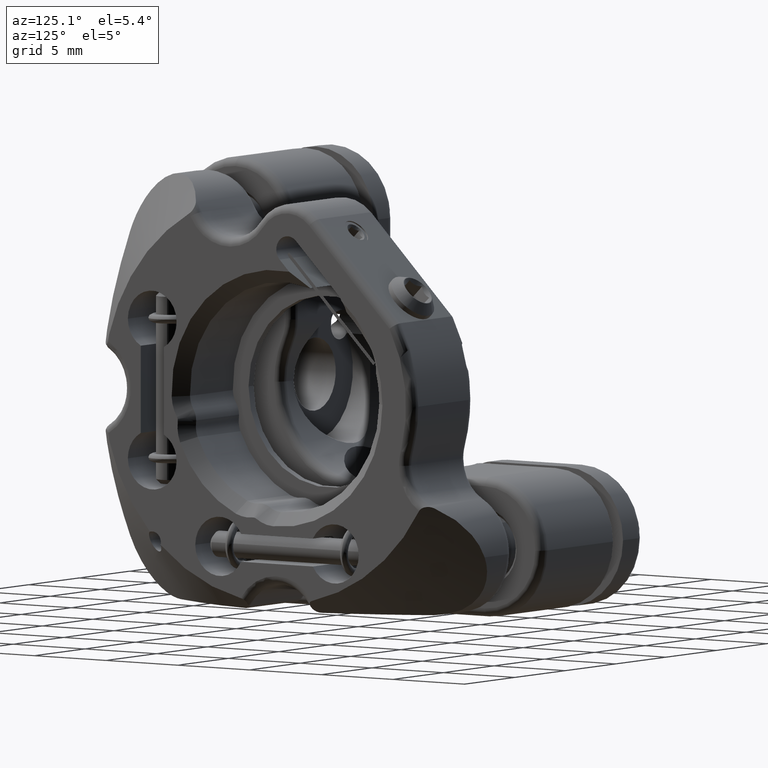
[diagram: clean part render]
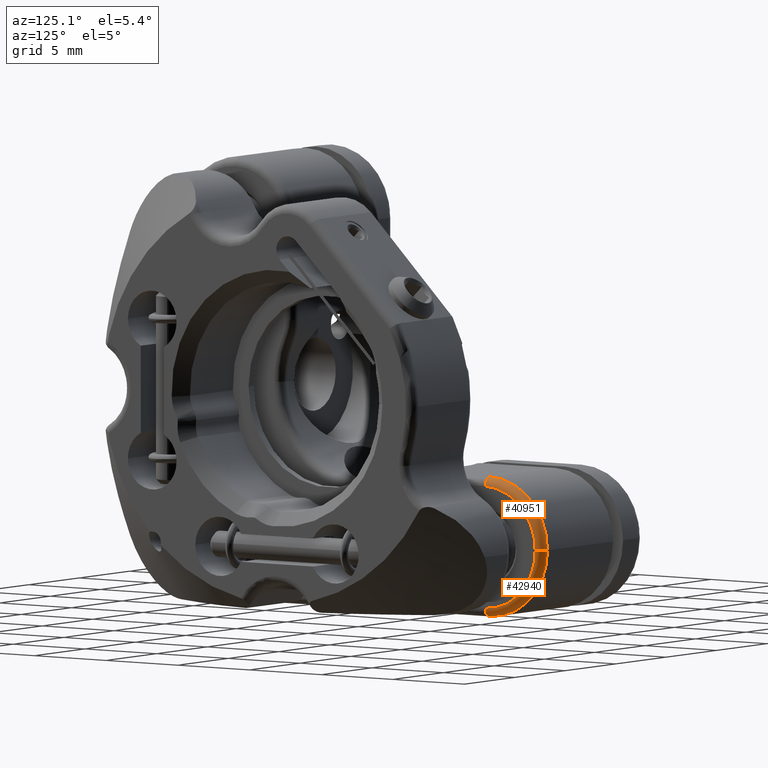
[diagram: same view with one multi-face feature highlighted, each face labeled with its STEP entity id]
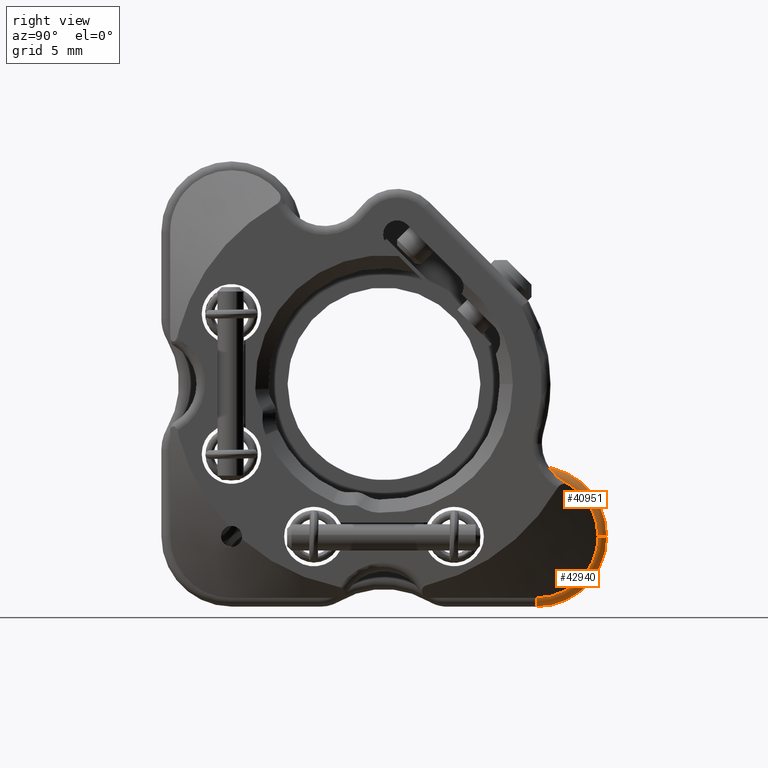
[diagram: same view with one multi-face feature highlighted, each face labeled with its STEP entity id]
A machine part, auxiliary view. The highlighted faces form ONE feature: a constant-radius fillet chain: 2 tangent blend faces with common blend radius 0.5 mm. The faces share edges in the B-rep.
A second angle (right view) of the same feature is appended — it is thin or edge-on in the first view.
Their STEP definitions:
[1] entity #42940 (Torus):
#220 = AXIS2_PLACEMENT_3D ( 'NONE', #24979, #11765, #18030 ) ;
#582 = CARTESIAN_POINT ( 'NONE',  ( -8.500000000000000000, 21.39999999999998792, -6.594749130262417935 ) ) ;
#1352 = VERTEX_POINT ( 'NONE', #31312 ) ;
#2569 = DIRECTION ( 'NONE',  ( -1.000000000000000000, 0.0000000000000000000, 0.0000000000000000000 ) ) ;
#2901 = CARTESIAN_POINT ( 'NONE',  ( -9.000000000000001776, 25.39999999999999147, -3.094749130262419712 ) ) ;
#3145 = CARTESIAN_POINT ( 'NONE',  ( -9.000000000000001776, 21.39999999999998792, -6.594749130262417935 ) ) ;
#3500 = DIRECTION ( 'NONE',  ( 0.0000000000000000000, -1.000000000000000000, 1.239088197126290817E-16 ) ) ;
#7050 = ORIENTED_EDGE ( 'NONE', *, *, #42989, .F. ) ;
#8298 = CARTESIAN_POINT ( 'NONE',  ( -9.000000000000001776, 24.89999999999999147, -3.094749130262419712 ) ) ;
#10720 = VERTEX_POINT ( 'NONE', #2901 ) ;
#11116 = DIRECTION ( 'NONE',  ( 0.0000000000000000000, 7.394258816351139007E-17, 1.000000000000000000 ) ) ;
#11765 = DIRECTION ( 'NONE',  ( -1.000000000000000000, 0.0000000000000000000, 0.0000000000000000000 ) ) ;
#13368 = AXIS2_PLACEMENT_3D ( 'NONE', #8298, #11116, #28090 ) ;
#13579 = CARTESIAN_POINT ( 'NONE',  ( -8.500000000000000000, 21.39999999999999147, -3.094749130262417935 ) ) ;
#14702 = DIRECTION ( 'NONE',  ( -1.000000000000000000, 0.0000000000000000000, 0.0000000000000000000 ) ) ;
#16178 = EDGE_CURVE ( 'NONE', #1352, #10720, #28875, .T. ) ;
#16685 = CIRCLE ( 'NONE', #220, 4.000000000000000000 ) ;
#18030 = DIRECTION ( 'NONE',  ( 0.0000000000000000000, -1.000000000000000000, 1.084202172485504434E-16 ) ) ;
#23298 = EDGE_CURVE ( 'NONE', #23960, #1352, #34456, .T. ) ;
#23354 = ORIENTED_EDGE ( 'NONE', *, *, #30895, .T. ) ;
#23960 = VERTEX_POINT ( 'NONE', #582 ) ;
#24399 = DIRECTION ( 'NONE',  ( 0.0000000000000000000, -1.000000000000000000, 1.084202172485504434E-16 ) ) ;
#24979 = CARTESIAN_POINT ( 'NONE',  ( -9.000000000000001776, 21.39999999999999147, -3.094749130262417935 ) ) ;
#25607 = ORIENTED_EDGE ( 'NONE', *, *, #23298, .F. ) ;
#28090 = DIRECTION ( 'NONE',  ( 0.0000000000000000000, 1.000000000000000000, 0.0000000000000000000 ) ) ;
#28096 = ORIENTED_EDGE ( 'NONE', *, *, #16178, .F. ) ;
#28875 = CIRCLE ( 'NONE', #13368, 0.5000000000000004441 ) ;
#29163 = TOROIDAL_SURFACE ( 'NONE', #30034, 3.500000000000000000, 0.5000000000000000000 ) ;
#29652 = FACE_OUTER_BOUND ( 'NONE', #33014, .T. ) ;
#30034 = AXIS2_PLACEMENT_3D ( 'NONE', #34530, #14702, #24399 ) ;
#30895 = EDGE_CURVE ( 'NONE', #23960, #35617, #41831, .T. ) ;
#31312 = CARTESIAN_POINT ( 'NONE',  ( -8.500000000000000000, 24.89999999999999147, -3.094749130262419712 ) ) ;
#33014 = EDGE_LOOP ( 'NONE', ( #23354, #7050, #28096, #25607 ) ) ;
#33064 = DIRECTION ( 'NONE',  ( 0.0000000000000000000, 1.000000000000000000, -7.394258816351139007E-17 ) ) ;
#33609 = CARTESIAN_POINT ( 'NONE',  ( -9.000000000000001776, 21.39999999999998792, -7.094749130262417935 ) ) ;
#34456 = CIRCLE ( 'NONE', #41294, 3.499999999999999556 ) ;
#34530 = CARTESIAN_POINT ( 'NONE',  ( -9.000000000000001776, 21.39999999999999147, -3.094749130262417935 ) ) ;
#35617 = VERTEX_POINT ( 'NONE', #33609 ) ;
#36611 = DIRECTION ( 'NONE',  ( 1.000000000000000000, -0.0000000000000000000, -0.0000000000000000000 ) ) ;
#41294 = AXIS2_PLACEMENT_3D ( 'NONE', #13579, #36611, #3500 ) ;
#41831 = CIRCLE ( 'NONE', #42033, 0.5000000000000004441 ) ;
#42033 = AXIS2_PLACEMENT_3D ( 'NONE', #3145, #33064, #2569 ) ;
#42940 = ADVANCED_FACE ( 'NONE', ( #29652 ), #29163, .T. ) ;
#42989 = EDGE_CURVE ( 'NONE', #10720, #35617, #16685, .T. ) ;
[2] entity #40951 (Torus):
#1352 = VERTEX_POINT ( 'NONE', #31312 ) ;
#2785 = CARTESIAN_POINT ( 'NONE',  ( -8.500000000000000000, 21.39999999999999147, -3.094749130262417935 ) ) ;
#2901 = CARTESIAN_POINT ( 'NONE',  ( -9.000000000000001776, 25.39999999999999147, -3.094749130262419712 ) ) ;
#4075 = CARTESIAN_POINT ( 'NONE',  ( -9.000000000000001776, 21.39999999999999147, 0.9052508697375812874 ) ) ;
#5283 = VERTEX_POINT ( 'NONE', #4075 ) ;
#5453 = DIRECTION ( 'NONE',  ( 1.000000000000000000, -0.0000000000000000000, -0.0000000000000000000 ) ) ;
#8298 = CARTESIAN_POINT ( 'NONE',  ( -9.000000000000001776, 24.89999999999999147, -3.094749130262419712 ) ) ;
#10135 = CARTESIAN_POINT ( 'NONE',  ( -8.500000000000000000, 21.39999999999999147, 0.4052508697375807878 ) ) ;
#10720 = VERTEX_POINT ( 'NONE', #2901 ) ;
#10922 = EDGE_LOOP ( 'NONE', ( #32299, #32142, #42200, #18494 ) ) ;
#11003 = TOROIDAL_SURFACE ( 'NONE', #25766, 3.500000000000000000, 0.5000000000000000000 ) ;
#11116 = DIRECTION ( 'NONE',  ( 0.0000000000000000000, 7.394258816351139007E-17, 1.000000000000000000 ) ) ;
#11202 = AXIS2_PLACEMENT_3D ( 'NONE', #2785, #5453, #12196 ) ;
#12196 = DIRECTION ( 'NONE',  ( 0.0000000000000000000, -1.000000000000000000, 1.858632295689436398E-15 ) ) ;
#13368 = AXIS2_PLACEMENT_3D ( 'NONE', #8298, #11116, #28090 ) ;
#13467 = CARTESIAN_POINT ( 'NONE',  ( -9.000000000000001776, 21.39999999999999147, -3.094749130262417935 ) ) ;
#14109 = AXIS2_PLACEMENT_3D ( 'NONE', #13467, #40164, #20159 ) ;
#16178 = EDGE_CURVE ( 'NONE', #1352, #10720, #28875, .T. ) ;
#18494 = ORIENTED_EDGE ( 'NONE', *, *, #28061, .F. ) ;
#19257 = FACE_OUTER_BOUND ( 'NONE', #10922, .T. ) ;
#19317 = CARTESIAN_POINT ( 'NONE',  ( -9.000000000000001776, 21.39999999999999147, -3.094749130262417935 ) ) ;
#20159 = DIRECTION ( 'NONE',  ( 0.0000000000000000000, -1.000000000000000000, 1.084202172485504434E-16 ) ) ;
#22607 = CIRCLE ( 'NONE', #14109, 4.000000000000000000 ) ;
#22618 = DIRECTION ( 'NONE',  ( 0.0000000000000000000, -1.000000000000000000, 1.084202172485504434E-16 ) ) ;
#24686 = EDGE_CURVE ( 'NONE', #38553, #5283, #34949, .T. ) ;
#25766 = AXIS2_PLACEMENT_3D ( 'NONE', #19317, #29303, #22618 ) ;
#28061 = EDGE_CURVE ( 'NONE', #1352, #38553, #30263, .T. ) ;
#28090 = DIRECTION ( 'NONE',  ( 0.0000000000000000000, 1.000000000000000000, 0.0000000000000000000 ) ) ;
#28875 = CIRCLE ( 'NONE', #13368, 0.5000000000000004441 ) ;
#29303 = DIRECTION ( 'NONE',  ( -1.000000000000000000, 0.0000000000000000000, 0.0000000000000000000 ) ) ;
#30263 = CIRCLE ( 'NONE', #11202, 3.499999999999999556 ) ;
#31312 = CARTESIAN_POINT ( 'NONE',  ( -8.500000000000000000, 24.89999999999999147, -3.094749130262419712 ) ) ;
#32142 = ORIENTED_EDGE ( 'NONE', *, *, #39630, .F. ) ;
#32299 = ORIENTED_EDGE ( 'NONE', *, *, #16178, .T. ) ;
#32697 = DIRECTION ( 'NONE',  ( 1.000000000000000000, 0.0000000000000000000, 0.0000000000000000000 ) ) ;
#32849 = CARTESIAN_POINT ( 'NONE',  ( -9.000000000000001776, 21.39999999999999147, 0.4052508697375807878 ) ) ;
#34949 = CIRCLE ( 'NONE', #37375, 0.5000000000000004441 ) ;
#35916 = DIRECTION ( 'NONE',  ( 0.0000000000000000000, -1.000000000000000000, 7.394258816351139007E-17 ) ) ;
#37375 = AXIS2_PLACEMENT_3D ( 'NONE', #32849, #35916, #32697 ) ;
#38553 = VERTEX_POINT ( 'NONE', #10135 ) ;
#39630 = EDGE_CURVE ( 'NONE', #5283, #10720, #22607, .T. ) ;
#40164 = DIRECTION ( 'NONE',  ( -1.000000000000000000, 0.0000000000000000000, 0.0000000000000000000 ) ) ;
#40951 = ADVANCED_FACE ( 'NONE', ( #19257 ), #11003, .T. ) ;
#42200 = ORIENTED_EDGE ( 'NONE', *, *, #24686, .F. ) ;